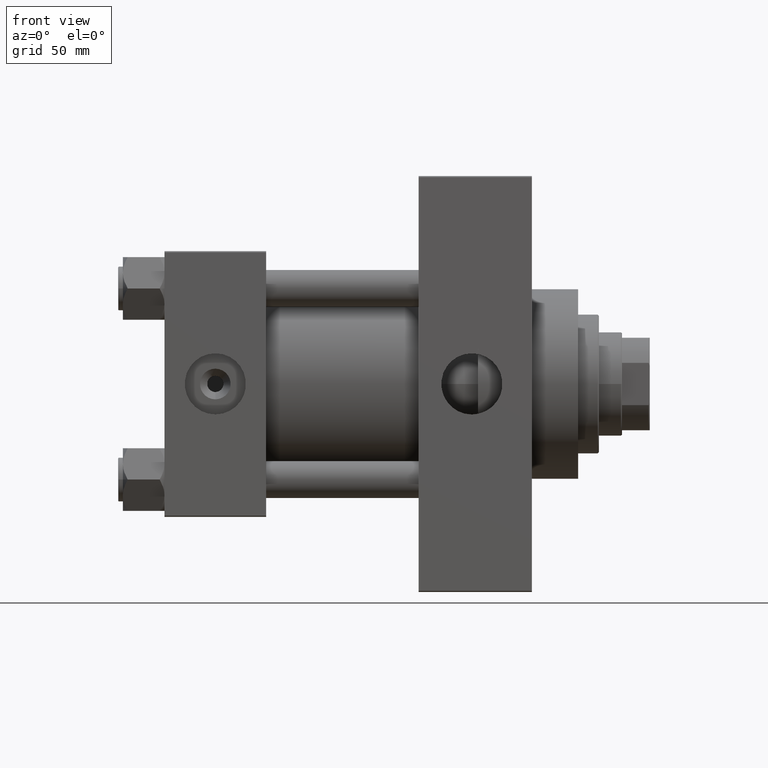
[diagram: clean part render]
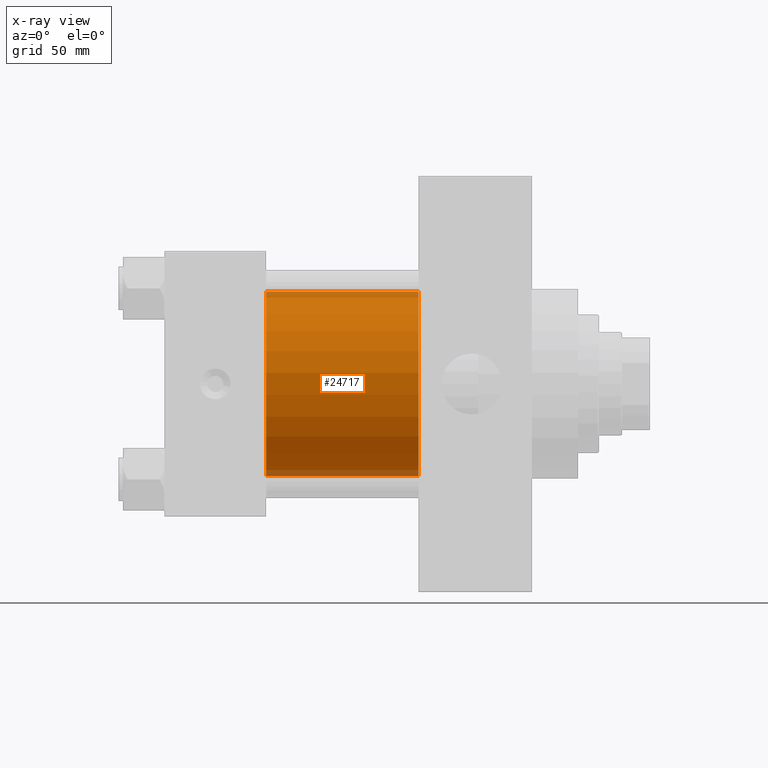
[diagram: x-ray — body ghosted, one internal face saturated and labeled with its STEP entity id]
A machine part, front view, then the same camera in x-ray: the body is ghosted and one INTERNAL B-rep face — a face not visible from any outside direction — is saturated and labeled: STEP entity #24717.
In plain terms, the highlighted cylindrical surface (partial cylindrical patch) has radius 40 mm, axis along (-1, -0, -0).
Its self-contained STEP definition (entity closure, byte-faithful):
#743 = DIRECTION ( 'NONE',  ( 1.000000000000000000, 0.000000000000000000, 0.000000000000000000 ) ) ;
#999 = CARTESIAN_POINT ( 'NONE',  ( 110.0000000000000000, -2.602085213965210642E-15, 40.00000000000000000 ) ) ;
#1360 = VERTEX_POINT ( 'NONE', #42777 ) ;
#3517 = VECTOR ( 'NONE', #47873, 1000.000000000000000 ) ;
#4178 = AXIS2_PLACEMENT_3D ( 'NONE', #34476, #743, #22885 ) ;
#6590 = DIRECTION ( 'NONE',  ( 0.000000000000000000, 0.000000000000000000, 1.000000000000000000 ) ) ;
#7570 = AXIS2_PLACEMENT_3D ( 'NONE', #43241, #24072, #20785 ) ;
#9345 = CARTESIAN_POINT ( 'NONE',  ( 110.0000000000000000, 2.296501982624201990E-15, -40.00000000000000000 ) ) ;
#11478 = EDGE_LOOP ( 'NONE', ( #36467, #19230, #38897, #36207 ) ) ;
#16102 = DIRECTION ( 'NONE',  ( -1.000000000000000000, -0.000000000000000000, -0.000000000000000000 ) ) ;
#18639 = DIRECTION ( 'NONE',  ( -1.000000000000000000, -0.000000000000000000, -0.000000000000000000 ) ) ;
#18876 = FACE_OUTER_BOUND ( 'NONE', #11478, .T. ) ;
#19230 = ORIENTED_EDGE ( 'NONE', *, *, #46809, .T. ) ;
#20392 = CIRCLE ( 'NONE', #7570, 40.00000000000000000 ) ;
#20450 = CARTESIAN_POINT ( 'NONE',  ( 44.00000000000000000, -2.602085213965210642E-15, 40.00000000000000000 ) ) ;
#20785 = DIRECTION ( 'NONE',  ( 0.000000000000000000, 0.000000000000000000, -1.000000000000000000 ) ) ;
#22443 = CARTESIAN_POINT ( 'NONE',  ( 110.0000000000000000, 2.296501982624201990E-15, -40.00000000000000000 ) ) ;
#22885 = DIRECTION ( 'NONE',  ( 0.000000000000000000, 0.000000000000000000, -1.000000000000000000 ) ) ;
#23380 = EDGE_CURVE ( 'NONE', #37504, #1360, #41172, .T. ) ;
#23400 = LINE ( 'NONE', #999, #23573 ) ;
#23573 = VECTOR ( 'NONE', #16102, 1000.000000000000000 ) ;
#24072 = DIRECTION ( 'NONE',  ( 1.000000000000000000, 0.000000000000000000, 0.000000000000000000 ) ) ;
#24717 = ADVANCED_FACE ( 'NONE', ( #18876 ), #26176, .F. ) ;
#26176 = CYLINDRICAL_SURFACE ( 'NONE', #49245, 40.00000000000000000 ) ;
#26675 = CARTESIAN_POINT ( 'NONE',  ( 110.0000000000000000, -2.602085213965210642E-15, 0.000000000000000000 ) ) ;
#29954 = VERTEX_POINT ( 'NONE', #22443 ) ;
#34476 = CARTESIAN_POINT ( 'NONE',  ( 44.00000000000000000, -2.602085213965210642E-15, 0.000000000000000000 ) ) ;
#36207 = ORIENTED_EDGE ( 'NONE', *, *, #46990, .F. ) ;
#36281 = LINE ( 'NONE', #9345, #3517 ) ;
#36467 = ORIENTED_EDGE ( 'NONE', *, *, #48053, .T. ) ;
#37504 = VERTEX_POINT ( 'NONE', #20450 ) ;
#38897 = ORIENTED_EDGE ( 'NONE', *, *, #23380, .F. ) ;
#41172 = CIRCLE ( 'NONE', #4178, 40.00000000000000000 ) ;
#41911 = VERTEX_POINT ( 'NONE', #43989 ) ;
#42777 = CARTESIAN_POINT ( 'NONE',  ( 44.00000000000000000, 2.296501982624201990E-15, -40.00000000000000000 ) ) ;
#43241 = CARTESIAN_POINT ( 'NONE',  ( 110.0000000000000000, -2.602085213965210642E-15, 0.000000000000000000 ) ) ;
#43989 = CARTESIAN_POINT ( 'NONE',  ( 110.0000000000000000, -2.602085213965210642E-15, 40.00000000000000000 ) ) ;
#46809 = EDGE_CURVE ( 'NONE', #29954, #1360, #36281, .T. ) ;
#46990 = EDGE_CURVE ( 'NONE', #41911, #37504, #23400, .T. ) ;
#47873 = DIRECTION ( 'NONE',  ( -1.000000000000000000, -0.000000000000000000, -0.000000000000000000 ) ) ;
#48053 = EDGE_CURVE ( 'NONE', #41911, #29954, #20392, .T. ) ;
#49245 = AXIS2_PLACEMENT_3D ( 'NONE', #26675, #18639, #6590 ) ;